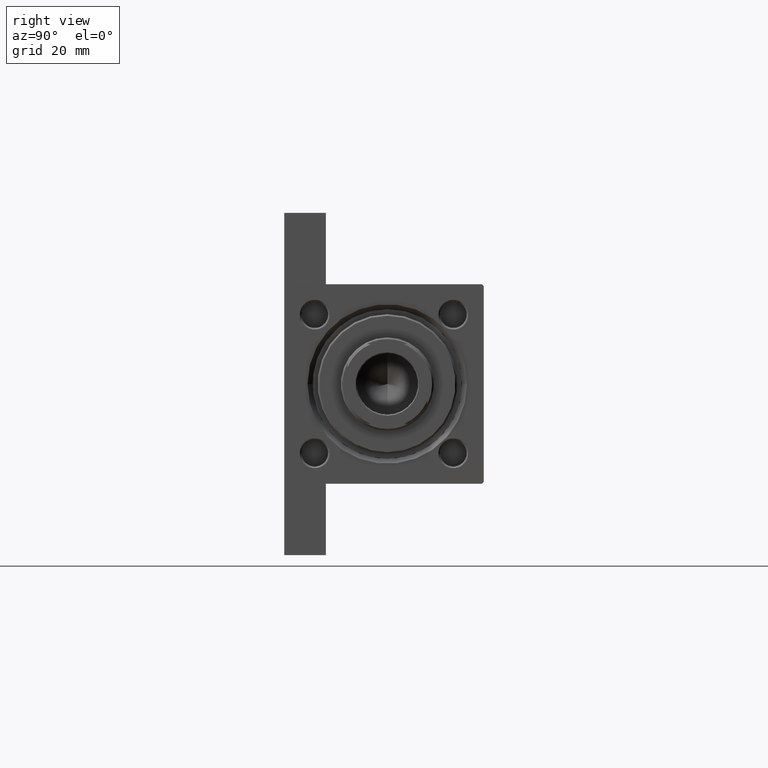
[diagram: clean part render]
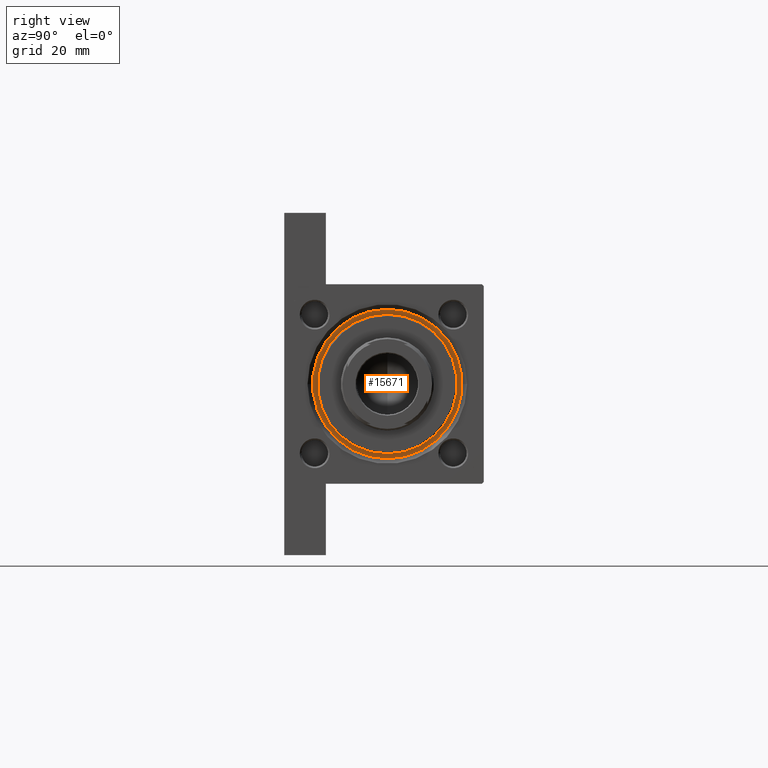
[diagram: same view with one face highlighted and labeled with its STEP entity id]
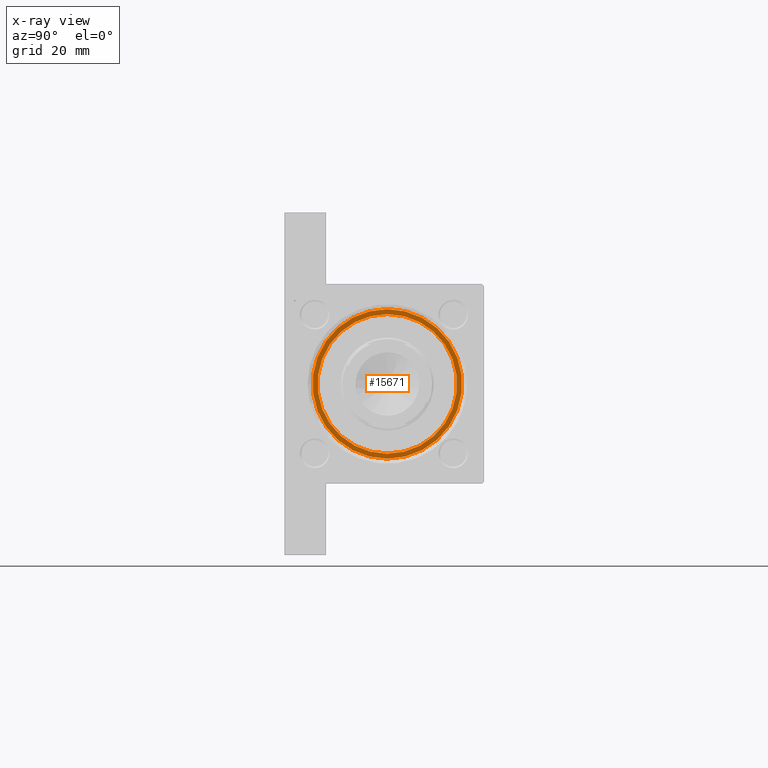
[diagram: x-ray of the same camera — body ghosted, the highlighted face saturated]
A machine part, right view. The second image highlights one B-rep face of the part: STEP entity #15671.
The next image is the same camera in x-ray: the body ghosted, the highlighted face saturated — about 0% of this face is hidden behind the body in this view.
In plain terms, the highlighted planar face has unit normal (1, 0, 0).
Its self-contained STEP definition (entity closure, byte-faithful):
#2277 = DIRECTION ( 'NONE',  ( 0.000000000000000000, 0.000000000000000000, 1.000000000000000000 ) ) ;
#2624 = DIRECTION ( 'NONE',  ( 0.000000000000000000, 0.000000000000000000, 1.000000000000000000 ) ) ;
#2821 = EDGE_CURVE ( 'NONE', #14790, #25590, #20070, .T. ) ;
#4864 = AXIS2_PLACEMENT_3D ( 'NONE', #42731, #2277, #24734 ) ;
#6564 = CARTESIAN_POINT ( 'NONE',  ( 0.000000000000000000, 0.000000000000000000, 28.69999999999999929 ) ) ;
#7742 = DIRECTION ( 'NONE',  ( 1.000000000000000000, 0.000000000000000000, 0.000000000000000000 ) ) ;
#7827 = AXIS2_PLACEMENT_3D ( 'NONE', #6564, #2624, #20644 ) ;
#9437 = DIRECTION ( 'NONE',  ( 1.000000000000000000, 0.000000000000000000, -0.000000000000000000 ) ) ;
#9484 = EDGE_CURVE ( 'NONE', #25590, #14790, #32276, .T. ) ;
#11642 = CARTESIAN_POINT ( 'NONE',  ( 22.50000000000000355, 2.755455298081545172E-15, 28.69999999999999929 ) ) ;
#11684 = DIRECTION ( 'NONE',  ( 0.000000000000000000, 0.000000000000000000, 1.000000000000000000 ) ) ;
#11794 = AXIS2_PLACEMENT_3D ( 'NONE', #32834, #12094, #26441 ) ;
#12094 = DIRECTION ( 'NONE',  ( 0.000000000000000000, 0.000000000000000000, 1.000000000000000000 ) ) ;
#12106 = ORIENTED_EDGE ( 'NONE', *, *, #16457, .F. ) ;
#12425 = CARTESIAN_POINT ( 'NONE',  ( 0.000000000000000000, 0.000000000000000000, 28.69999999999999929 ) ) ;
#13151 = FACE_BOUND ( 'NONE', #20616, .T. ) ;
#13506 = EDGE_LOOP ( 'NONE', ( #16010, #41522 ) ) ;
#14790 = VERTEX_POINT ( 'NONE', #11642 ) ;
#15096 = VERTEX_POINT ( 'NONE', #15301 ) ;
#15301 = CARTESIAN_POINT ( 'NONE',  ( 21.00000000000000000, 2.571758278209441661E-15, 28.69999999999999929 ) ) ;
#15671 = ADVANCED_FACE ( 'NONE', ( #13151, #46215 ), #28220, .T. ) ;
#16010 = ORIENTED_EDGE ( 'NONE', *, *, #9484, .T. ) ;
#16457 = EDGE_CURVE ( 'NONE', #15096, #27406, #48767, .T. ) ;
#20070 = CIRCLE ( 'NONE', #37385, 22.50000000000000355 ) ;
#20616 = EDGE_LOOP ( 'NONE', ( #24365, #12106 ) ) ;
#20644 = DIRECTION ( 'NONE',  ( 1.000000000000000000, 0.000000000000000000, 0.000000000000000000 ) ) ;
#24365 = ORIENTED_EDGE ( 'NONE', *, *, #24786, .F. ) ;
#24734 = DIRECTION ( 'NONE',  ( 1.000000000000000000, 0.000000000000000000, 0.000000000000000000 ) ) ;
#24786 = EDGE_CURVE ( 'NONE', #27406, #15096, #31646, .T. ) ;
#25590 = VERTEX_POINT ( 'NONE', #43740 ) ;
#26441 = DIRECTION ( 'NONE',  ( 1.000000000000000000, 0.000000000000000000, 0.000000000000000000 ) ) ;
#27244 = CARTESIAN_POINT ( 'NONE',  ( 0.000000000000000000, 0.000000000000000000, 28.69999999999999929 ) ) ;
#27406 = VERTEX_POINT ( 'NONE', #41359 ) ;
#28220 = PLANE ( 'NONE',  #46397 ) ;
#31646 = CIRCLE ( 'NONE', #4864, 21.00000000000000000 ) ;
#32276 = CIRCLE ( 'NONE', #11794, 22.50000000000000355 ) ;
#32834 = CARTESIAN_POINT ( 'NONE',  ( 0.000000000000000000, 0.000000000000000000, 28.69999999999999929 ) ) ;
#37385 = AXIS2_PLACEMENT_3D ( 'NONE', #27244, #11684, #7742 ) ;
#41359 = CARTESIAN_POINT ( 'NONE',  ( -21.00000000000000000, 0.000000000000000000, 28.69999999999999929 ) ) ;
#41522 = ORIENTED_EDGE ( 'NONE', *, *, #2821, .T. ) ;
#42731 = CARTESIAN_POINT ( 'NONE',  ( 0.000000000000000000, 0.000000000000000000, 28.69999999999999929 ) ) ;
#43234 = DIRECTION ( 'NONE',  ( 0.000000000000000000, 0.000000000000000000, 1.000000000000000000 ) ) ;
#43740 = CARTESIAN_POINT ( 'NONE',  ( -22.50000000000000355, 0.000000000000000000, 28.69999999999999929 ) ) ;
#46215 = FACE_OUTER_BOUND ( 'NONE', #13506, .T. ) ;
#46397 = AXIS2_PLACEMENT_3D ( 'NONE', #12425, #43234, #9437 ) ;
#48767 = CIRCLE ( 'NONE', #7827, 21.00000000000000000 ) ;